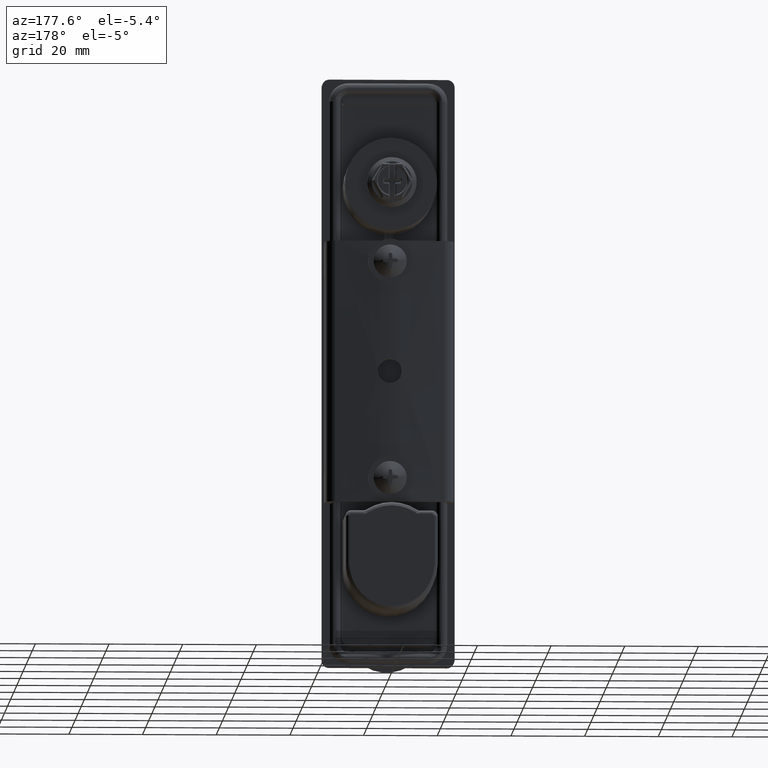
[diagram: clean part render]
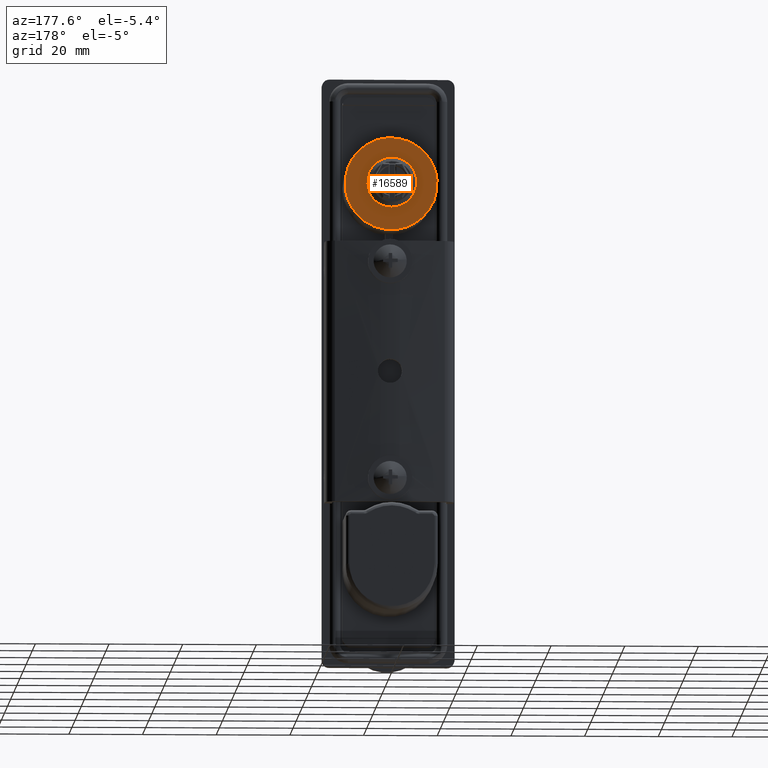
[diagram: same view with one face highlighted and labeled with its STEP entity id]
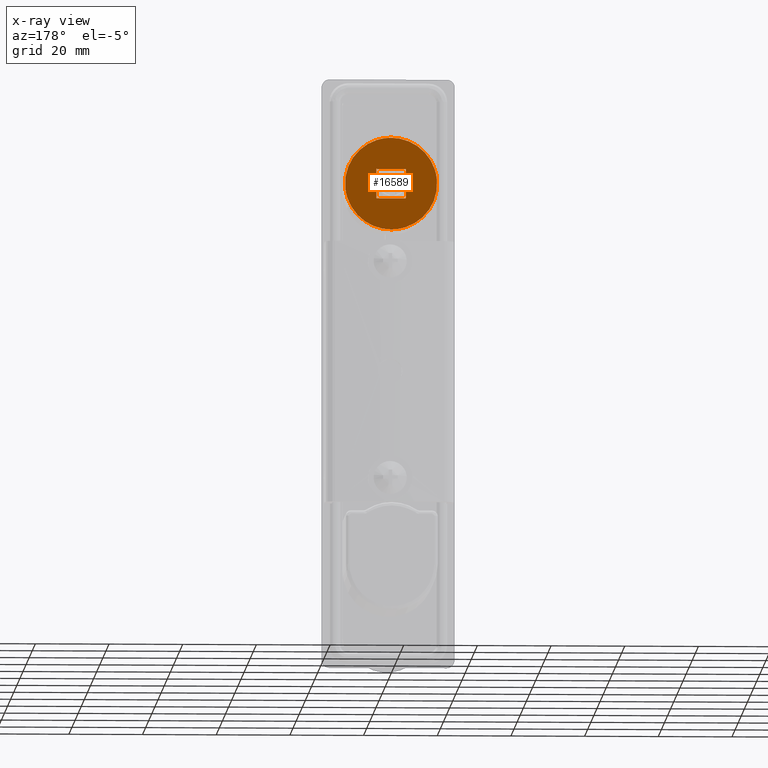
[diagram: x-ray of the same camera — body ghosted, the highlighted face saturated]
A machine part, auxiliary view. The second image highlights one B-rep face of the part: STEP entity #16589.
The next image is the same camera in x-ray: the body ghosted, the highlighted face saturated — about 0% of this face is hidden behind the body in this view.
In plain terms, the highlighted face is a freeform B-spline surface patch.
Its self-contained STEP definition (entity closure, byte-faithful):
#16405=CARTESIAN_POINT('',(4.000000000000001,18.200001472599201,4.0));
#16406=VERTEX_POINT('',#16405);
#16407=CARTESIAN_POINT('',(4.000000000000001,18.200001472599251,-4.0));
#16408=VERTEX_POINT('',#16407);
#16409=CARTESIAN_POINT('',(4.000000000000001,18.200001472599201,4.0));
#16410=CARTESIAN_POINT('',(4.000000000000001,18.200001472599251,-4.0));
#16411=QUASI_UNIFORM_CURVE('',1,(#16409,#16410),.UNSPECIFIED.,.F.,.U.);
#16412=EDGE_CURVE('',#16406,#16408,#16411,.T.);
#16441=CARTESIAN_POINT('',(-3.999999999999999,18.200001472599251,4.0));
#16442=VERTEX_POINT('',#16441);
#16443=CARTESIAN_POINT('',(-3.999999999999999,18.200001472599251,4.0));
#16444=CARTESIAN_POINT('',(4.000000000000001,18.200001472599201,4.0));
#16445=QUASI_UNIFORM_CURVE('',1,(#16443,#16444),.UNSPECIFIED.,.F.,.U.);
#16446=EDGE_CURVE('',#16442,#16406,#16445,.T.);
#16469=CARTESIAN_POINT('',(-3.999999999999999,18.200001472599251,-4.0));
#16470=VERTEX_POINT('',#16469);
#16471=CARTESIAN_POINT('',(-3.999999999999999,18.200001472599251,-4.0));
#16472=CARTESIAN_POINT('',(-3.999999999999999,18.200001472599251,4.0));
#16473=QUASI_UNIFORM_CURVE('',1,(#16471,#16472),.UNSPECIFIED.,.F.,.U.);
#16474=EDGE_CURVE('',#16470,#16442,#16473,.T.);
#16497=CARTESIAN_POINT('',(4.000000000000001,18.200001472599251,-4.0));
#16498=CARTESIAN_POINT('',(-3.999999999999999,18.200001472599251,-4.0));
#16499=QUASI_UNIFORM_CURVE('',1,(#16497,#16498),.UNSPECIFIED.,.F.,.U.);
#16500=EDGE_CURVE('',#16408,#16470,#16499,.T.);
#16512=CARTESIAN_POINT('',(-13.745031250398471,18.200001472599201,-13.748749951545150));
#16513=CARTESIAN_POINT('',(13.745031473915891,18.200001472599201,-13.748749951545150));
#16514=CARTESIAN_POINT('',(-13.745031250398471,18.200001472599201,13.748750622097401));
#16515=CARTESIAN_POINT('',(13.745031473915891,18.200001472599201,13.748750622097401));
#16516=B_SPLINE_SURFACE_WITH_KNOTS('',1,1,((#16512,#16514),(#16513,#16515)),.UNSPECIFIED.,.F.,.F.,.U.,(2,2),(2,2),(0.0,27.490062724314360),(0.0,27.497500573642551),.UNSPECIFIED.);
#16517=CARTESIAN_POINT('',(12.452433726128239,18.200001472599251,-1.089446784558142));
#16518=VERTEX_POINT('',#16517);
#16519=CARTESIAN_POINT('',(1.114392E-015,18.200001472599251,12.500000000000000));
#16520=VERTEX_POINT('',#16519);
#16521=CARTESIAN_POINT('',(12.452433726128241,18.200001472599247,-1.089446784558142));
#16522=CARTESIAN_POINT('',(12.500000000000005,18.200001472599247,-0.545761786463217));
#16523=CARTESIAN_POINT('',(12.500000000000000,18.200001472599251,0.0));
#16524=CARTESIAN_POINT('',(12.499999999999998,18.200001472599251,12.499999999999998));
#16525=CARTESIAN_POINT('',(1.114392E-015,18.200001472599251,12.500000000000000));
#16533=(BOUNDED_CURVE()B_SPLINE_CURVE(2,(#16521,#16522,#16523,#16524,#16525),.UNSPECIFIED.,.F.,.U.)B_SPLINE_CURVE_WITH_KNOTS((3,2,3),(0.734837734480282,0.750000000000000,1.0),.UNSPECIFIED.)CURVE()GEOMETRIC_REPRESENTATION_ITEM()RATIONAL_B_SPLINE_CURVE((0.966627305347457,0.982236300989703,1.0,0.707106781186547,1.0))REPRESENTATION_ITEM(''));
#16534=EDGE_CURVE('',#16518,#16520,#16533,.T.);
#16535=ORIENTED_EDGE('',*,*,#16534,.F.);
#16536=CARTESIAN_POINT('',(1.114392E-015,18.200001472599251,-12.500000000000000));
#16537=VERTEX_POINT('',#16536);
#16538=CARTESIAN_POINT('',(1.114392E-015,18.200001472599251,-12.500000000000000));
#16539=CARTESIAN_POINT('',(11.454139675021663,18.200001472599254,-12.500000000000000));
#16540=CARTESIAN_POINT('',(12.452433726128241,18.200001472599247,-1.089446784558142));
#16548=(BOUNDED_CURVE()B_SPLINE_CURVE(2,(#16538,#16539,#16540),.UNSPECIFIED.,.F.,.U.)B_SPLINE_CURVE_WITH_KNOTS((3,3),(0.500000000000000,0.734837734480282),.UNSPECIFIED.)CURVE()GEOMETRIC_REPRESENTATION_ITEM()RATIONAL_B_SPLINE_CURVE((1.0,0.724870480196845,0.966627305347457))REPRESENTATION_ITEM(''));
#16549=EDGE_CURVE('',#16537,#16518,#16548,.T.);
#16550=ORIENTED_EDGE('',*,*,#16549,.F.);
#16551=CARTESIAN_POINT('',(-12.452433726128319,18.200001472599251,1.089446784557171));
#16552=VERTEX_POINT('',#16551);
#16553=CARTESIAN_POINT('',(-12.452433726128323,18.200001472599251,1.089446784557172));
#16554=CARTESIAN_POINT('',(-12.500000000000000,18.200001472599254,0.545761786462729));
#16555=CARTESIAN_POINT('',(-12.500000000000000,18.200001472599251,0.0));
#16556=CARTESIAN_POINT('',(-12.499999999999996,18.200001472599251,-12.499999999999998));
#16557=CARTESIAN_POINT('',(1.114392E-015,18.200001472599251,-12.500000000000000));
#16565=(BOUNDED_CURVE()B_SPLINE_CURVE(2,(#16553,#16554,#16555,#16556,#16557),.UNSPECIFIED.,.F.,.U.)B_SPLINE_CURVE_WITH_KNOTS((3,2,3),(0.234837734480296,0.250000000000000,0.500000000000000),.UNSPECIFIED.)CURVE()GEOMETRIC_REPRESENTATION_ITEM()RATIONAL_B_SPLINE_CURVE((0.966627305347485,0.982236300989718,1.0,0.707106781186547,1.0))REPRESENTATION_ITEM(''));
#16566=EDGE_CURVE('',#16552,#16537,#16565,.T.);
#16567=ORIENTED_EDGE('',*,*,#16566,.F.);
#16568=CARTESIAN_POINT('',(1.114392E-015,18.200001472599251,12.500000000000000));
#16569=CARTESIAN_POINT('',(-11.454139675022553,18.200001472599258,12.499999999999998));
#16570=CARTESIAN_POINT('',(-12.452433726128323,18.200001472599251,1.089446784557172));
#16578=(BOUNDED_CURVE()B_SPLINE_CURVE(2,(#16568,#16569,#16570),.UNSPECIFIED.,.F.,.U.)B_SPLINE_CURVE_WITH_KNOTS((3,3),(0.0,0.234837734480296),.UNSPECIFIED.)CURVE()GEOMETRIC_REPRESENTATION_ITEM()RATIONAL_B_SPLINE_CURVE((1.0,0.724870480196829,0.966627305347485))REPRESENTATION_ITEM(''));
#16579=EDGE_CURVE('',#16520,#16552,#16578,.T.);
#16580=ORIENTED_EDGE('',*,*,#16579,.F.);
#16581=EDGE_LOOP('',(#16535,#16550,#16567,#16580));
#16582=FACE_OUTER_BOUND('',#16581,.T.);
#16583=ORIENTED_EDGE('',*,*,#16474,.F.);
#16584=ORIENTED_EDGE('',*,*,#16500,.F.);
#16585=ORIENTED_EDGE('',*,*,#16412,.F.);
#16586=ORIENTED_EDGE('',*,*,#16446,.F.);
#16587=EDGE_LOOP('',(#16583,#16584,#16585,#16586));
#16588=FACE_BOUND('',#16587,.T.);
#16589=ADVANCED_FACE('',(#16582,#16588),#16516,.F.);